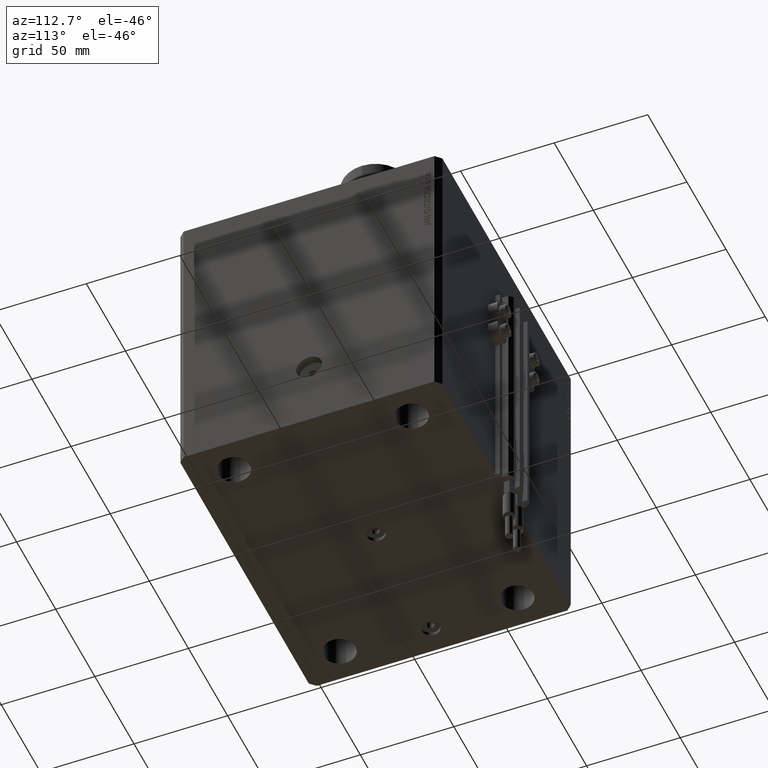
[diagram: clean part render]
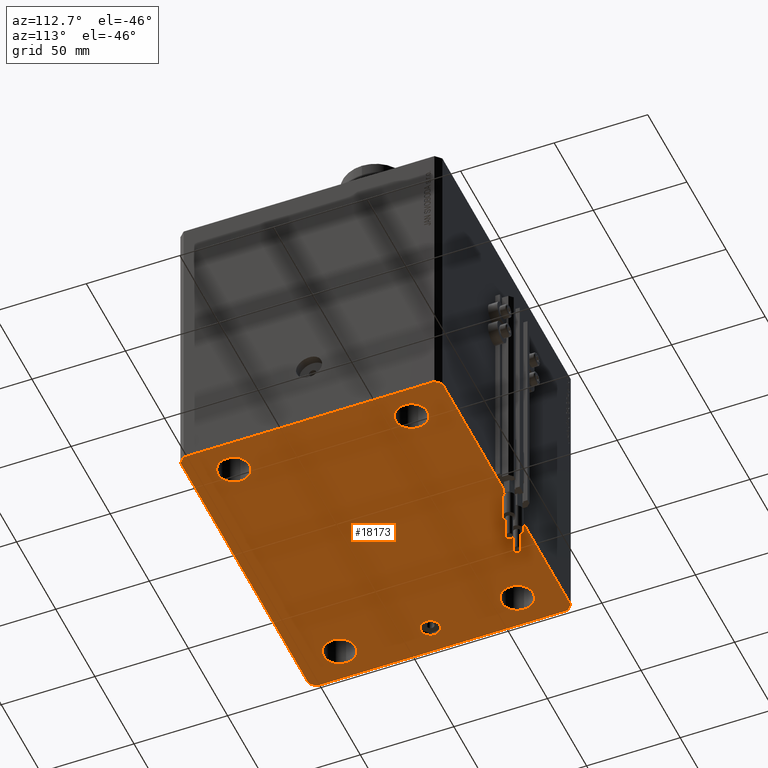
[diagram: same view with one face highlighted and labeled with its STEP entity id]
A machine part, auxiliary view. The second image highlights one B-rep face of the part: STEP entity #18173.
In plain terms, the highlighted planar face has unit normal (0, 0, 1).
Its self-contained STEP definition (entity closure, byte-faithful):
#588 = CIRCLE ( 'NONE', #5418, 8.499999999999992895 ) ;
#993 = CARTESIAN_POINT ( 'NONE',  ( -5.000000000000000000, 0.000000000000000000, -160.0000000000000000 ) ) ;
#1572 = AXIS2_PLACEMENT_3D ( 'NONE', #48797, #17963, #14182 ) ;
#1988 = EDGE_CURVE ( 'NONE', #14984, #17873, #35409, .T. ) ;
#2251 = LINE ( 'NONE', #5772, #44928 ) ;
#2458 = ORIENTED_EDGE ( 'NONE', *, *, #11910, .F. ) ;
#2560 = CARTESIAN_POINT ( 'NONE',  ( 75.99999999999998579, -47.50000000000001421, -160.0000000000000000 ) ) ;
#2867 = DIRECTION ( 'NONE',  ( 1.000000000000000000, 0.000000000000000000, -0.000000000000000000 ) ) ;
#3348 = PLANE ( 'NONE',  #44728 ) ;
#3485 = VERTEX_POINT ( 'NONE', #13277 ) ;
#3542 = EDGE_CURVE ( 'NONE', #26764, #43868, #45171, .T. ) ;
#3877 = VERTEX_POINT ( 'NONE', #6915 ) ;
#4034 = DIRECTION ( 'NONE',  ( -0.000000000000000000, -0.000000000000000000, -1.000000000000000000 ) ) ;
#4366 = EDGE_CURVE ( 'NONE', #17347, #19916, #24219, .T. ) ;
#4389 = DIRECTION ( 'NONE',  ( -0.000000000000000000, -0.000000000000000000, -1.000000000000000000 ) ) ;
#4506 = LINE ( 'NONE', #19881, #38065 ) ;
#4937 = ORIENTED_EDGE ( 'NONE', *, *, #31858, .F. ) ;
#5153 = CIRCLE ( 'NONE', #26934, 8.499999999999992895 ) ;
#5418 = AXIS2_PLACEMENT_3D ( 'NONE', #11102, #8058, #49249 ) ;
#5772 = CARTESIAN_POINT ( 'NONE',  ( 85.00000000000052580, 66.99999999999995737, -160.0000000000000000 ) ) ;
#6022 = CARTESIAN_POINT ( 'NONE',  ( -76.00000000000000000, 47.50000000000000000, -160.0000000000000000 ) ) ;
#6128 = CARTESIAN_POINT ( 'NONE',  ( 85.00000000000001421, -67.00000000000000000, -160.0000000000000000 ) ) ;
#6198 = ORIENTED_EDGE ( 'NONE', *, *, #33427, .F. ) ;
#6263 = CARTESIAN_POINT ( 'NONE',  ( -70.00000000000000000, 0.000000000000000000, -160.0000000000000000 ) ) ;
#6423 = CARTESIAN_POINT ( 'NONE',  ( -82.00000000000000000, -70.00000000000000000, -160.0000000000000000 ) ) ;
#6598 = EDGE_LOOP ( 'NONE', ( #34792, #36515 ) ) ;
#6915 = CARTESIAN_POINT ( 'NONE',  ( 82.00000000000001421, -70.00000000000000000, -160.0000000000000000 ) ) ;
#7323 = CARTESIAN_POINT ( 'NONE',  ( -65.00000000000000000, 6.123233995736770227E-16, -160.0000000000000000 ) ) ;
#7622 = ORIENTED_EDGE ( 'NONE', *, *, #31022, .F. ) ;
#7722 = VECTOR ( 'NONE', #11135, 1000.000000000000114 ) ;
#8058 = DIRECTION ( 'NONE',  ( -0.000000000000000000, -0.000000000000000000, -1.000000000000000000 ) ) ;
#8072 = CARTESIAN_POINT ( 'NONE',  ( -67.50000000000000000, 47.50000000000000000, -160.0000000000000000 ) ) ;
#8173 = DIRECTION ( 'NONE',  ( -0.000000000000000000, -0.000000000000000000, -1.000000000000000000 ) ) ;
#8691 = ORIENTED_EDGE ( 'NONE', *, *, #13782, .F. ) ;
#9515 = VERTEX_POINT ( 'NONE', #2560 ) ;
#10496 = DIRECTION ( 'NONE',  ( 0.000000000000000000, 0.000000000000000000, -1.000000000000000000 ) ) ;
#10547 = CARTESIAN_POINT ( 'NONE',  ( -82.00000000000000000, -70.00000000000000000, -160.0000000000000000 ) ) ;
#10713 = CARTESIAN_POINT ( 'NONE',  ( 0.000000000000000000, 0.000000000000000000, -160.0000000000000000 ) ) ;
#11058 = EDGE_CURVE ( 'NONE', #12943, #26802, #4506, .T. ) ;
#11102 = CARTESIAN_POINT ( 'NONE',  ( -67.49999999999998579, -47.50000000000001421, -160.0000000000000000 ) ) ;
#11135 = DIRECTION ( 'NONE',  ( 0.7071067811865474617, 0.7071067811865474617, 0.000000000000000000 ) ) ;
#11164 = DIRECTION ( 'NONE',  ( 0.000000000000000000, 0.000000000000000000, 1.000000000000000000 ) ) ;
#11910 = EDGE_CURVE ( 'NONE', #30781, #16196, #36426, .T. ) ;
#12461 = EDGE_CURVE ( 'NONE', #16196, #30781, #15471, .T. ) ;
#12841 = DIRECTION ( 'NONE',  ( 1.000000000000000000, 0.000000000000000000, 0.000000000000000000 ) ) ;
#12943 = VERTEX_POINT ( 'NONE', #30053 ) ;
#13277 = CARTESIAN_POINT ( 'NONE',  ( 85.00000000000052580, 66.99999999999995737, -160.0000000000000000 ) ) ;
#13782 = EDGE_CURVE ( 'NONE', #29002, #9515, #18758, .T. ) ;
#13894 = DIRECTION ( 'NONE',  ( -0.000000000000000000, -0.000000000000000000, -1.000000000000000000 ) ) ;
#14004 = VERTEX_POINT ( 'NONE', #6423 ) ;
#14117 = DIRECTION ( 'NONE',  ( 0.000000000000000000, 0.000000000000000000, -1.000000000000000000 ) ) ;
#14182 = DIRECTION ( 'NONE',  ( 1.000000000000000000, 0.000000000000000000, 0.000000000000000000 ) ) ;
#14339 = DIRECTION ( 'NONE',  ( -0.000000000000000000, -0.000000000000000000, -1.000000000000000000 ) ) ;
#14543 = CARTESIAN_POINT ( 'NONE',  ( -75.99999999999998579, -47.50000000000001421, -160.0000000000000000 ) ) ;
#14582 = DIRECTION ( 'NONE',  ( 1.000000000000000000, 0.000000000000000000, 0.000000000000000000 ) ) ;
#14657 = AXIS2_PLACEMENT_3D ( 'NONE', #29556, #14117, #44942 ) ;
#14984 = VERTEX_POINT ( 'NONE', #27416 ) ;
#15471 = CIRCLE ( 'NONE', #45350, 5.000000000000000000 ) ;
#15734 = CARTESIAN_POINT ( 'NONE',  ( -67.50000000000000000, 47.50000000000000000, -160.0000000000000000 ) ) ;
#15918 = VECTOR ( 'NONE', #30518, 1000.000000000000114 ) ;
#15988 = CARTESIAN_POINT ( 'NONE',  ( 67.49999999999998579, -47.50000000000001421, -160.0000000000000000 ) ) ;
#16196 = VERTEX_POINT ( 'NONE', #48057 ) ;
#16374 = DIRECTION ( 'NONE',  ( -0.000000000000000000, -0.000000000000000000, -1.000000000000000000 ) ) ;
#16517 = EDGE_LOOP ( 'NONE', ( #4937, #31611, #6198, #30505, #30898, #21196, #32057, #40631 ) ) ;
#16574 = VECTOR ( 'NONE', #43727, 1000.000000000000000 ) ;
#16687 = LINE ( 'NONE', #47514, #16574 ) ;
#16708 = CIRCLE ( 'NONE', #44964, 5.000000000000004441 ) ;
#16923 = CARTESIAN_POINT ( 'NONE',  ( -82.00000000000000000, 70.00000000000000000, -160.0000000000000000 ) ) ;
#17244 = EDGE_CURVE ( 'NONE', #26608, #36626, #5153, .T. ) ;
#17347 = VERTEX_POINT ( 'NONE', #20255 ) ;
#17416 = AXIS2_PLACEMENT_3D ( 'NONE', #31316, #4034, #31065 ) ;
#17873 = VERTEX_POINT ( 'NONE', #29696 ) ;
#17963 = DIRECTION ( 'NONE',  ( -0.000000000000000000, -0.000000000000000000, -1.000000000000000000 ) ) ;
#18030 = DIRECTION ( 'NONE',  ( 0.000000000000000000, 0.000000000000000000, -1.000000000000000000 ) ) ;
#18173 = ADVANCED_FACE ( 'NONE', ( #44274, #21269, #43524, #18238, #37936, #21761, #41483 ), #3348, .F. ) ;
#18238 = FACE_BOUND ( 'NONE', #38034, .T. ) ;
#18366 = LINE ( 'NONE', #19117, #15918 ) ;
#18584 = AXIS2_PLACEMENT_3D ( 'NONE', #21969, #13894, #40427 ) ;
#18758 = CIRCLE ( 'NONE', #46990, 8.499999999999992895 ) ;
#19117 = CARTESIAN_POINT ( 'NONE',  ( -85.00000000000000000, -67.00000000000000000, -160.0000000000000000 ) ) ;
#19881 = CARTESIAN_POINT ( 'NONE',  ( -85.00000000000001421, 67.00000000000001421, -160.0000000000000000 ) ) ;
#19916 = VERTEX_POINT ( 'NONE', #14543 ) ;
#20193 = EDGE_CURVE ( 'NONE', #3877, #24748, #46725, .T. ) ;
#20255 = CARTESIAN_POINT ( 'NONE',  ( -59.00000000000000000, -47.50000000000001421, -160.0000000000000000 ) ) ;
#20901 = DIRECTION ( 'NONE',  ( -0.7071067811865361374, 0.7071067811865588970, 0.000000000000000000 ) ) ;
#21086 = ORIENTED_EDGE ( 'NONE', *, *, #32140, .F. ) ;
#21121 = CARTESIAN_POINT ( 'NONE',  ( 85.00000000000001421, -67.00000000000000000, -160.0000000000000000 ) ) ;
#21196 = ORIENTED_EDGE ( 'NONE', *, *, #35449, .F. ) ;
#21269 = FACE_BOUND ( 'NONE', #38327, .T. ) ;
#21761 = FACE_BOUND ( 'NONE', #45914, .T. ) ;
#21969 = CARTESIAN_POINT ( 'NONE',  ( -67.49999999999998579, -47.50000000000001421, -160.0000000000000000 ) ) ;
#22299 = EDGE_CURVE ( 'NONE', #17873, #14984, #36005, .T. ) ;
#22656 = EDGE_CURVE ( 'NONE', #14004, #3877, #25711, .T. ) ;
#23542 = AXIS2_PLACEMENT_3D ( 'NONE', #48698, #14339, #14582 ) ;
#23572 = DIRECTION ( 'NONE',  ( 1.000000000000000000, 0.000000000000000000, 0.000000000000000000 ) ) ;
#23793 = VECTOR ( 'NONE', #47755, 1000.000000000000114 ) ;
#23941 = DIRECTION ( 'NONE',  ( 3.728360903591945148E-15, 1.000000000000000000, 0.000000000000000000 ) ) ;
#24219 = CIRCLE ( 'NONE', #18584, 8.499999999999992895 ) ;
#24748 = VERTEX_POINT ( 'NONE', #6128 ) ;
#25381 = CARTESIAN_POINT ( 'NONE',  ( -82.00000000000000000, 70.00000000000000000, -160.0000000000000000 ) ) ;
#25533 = LINE ( 'NONE', #16923, #23793 ) ;
#25711 = LINE ( 'NONE', #10547, #34389 ) ;
#25718 = ORIENTED_EDGE ( 'NONE', *, *, #3542, .F. ) ;
#26389 = DIRECTION ( 'NONE',  ( -1.000000000000000000, 0.000000000000000000, 0.000000000000000000 ) ) ;
#26608 = VERTEX_POINT ( 'NONE', #47248 ) ;
#26764 = VERTEX_POINT ( 'NONE', #7323 ) ;
#26802 = VERTEX_POINT ( 'NONE', #41673 ) ;
#26934 = AXIS2_PLACEMENT_3D ( 'NONE', #15734, #4389, #46803 ) ;
#26986 = DIRECTION ( 'NONE',  ( 1.035655806553317576E-16, -1.000000000000000000, 0.000000000000000000 ) ) ;
#27416 = CARTESIAN_POINT ( 'NONE',  ( 76.00000000000001421, 47.49999999999999289, -160.0000000000000000 ) ) ;
#28227 = AXIS2_PLACEMENT_3D ( 'NONE', #33240, #10496, #37529 ) ;
#28730 = ORIENTED_EDGE ( 'NONE', *, *, #4366, .F. ) ;
#29002 = VERTEX_POINT ( 'NONE', #41547 ) ;
#29249 = EDGE_CURVE ( 'NONE', #19916, #17347, #588, .T. ) ;
#29268 = ORIENTED_EDGE ( 'NONE', *, *, #29249, .F. ) ;
#29518 = CIRCLE ( 'NONE', #48858, 8.499999999999992895 ) ;
#29549 = VECTOR ( 'NONE', #23941, 1000.000000000000000 ) ;
#29556 = CARTESIAN_POINT ( 'NONE',  ( 0.000000000000000000, 0.000000000000000000, -160.0000000000000000 ) ) ;
#29696 = CARTESIAN_POINT ( 'NONE',  ( 59.00000000000000000, 47.49999999999999289, -160.0000000000000000 ) ) ;
#29991 = DIRECTION ( 'NONE',  ( 0.000000000000000000, 0.000000000000000000, -1.000000000000000000 ) ) ;
#30053 = CARTESIAN_POINT ( 'NONE',  ( -85.00000000000001421, 67.00000000000001421, -160.0000000000000000 ) ) ;
#30505 = ORIENTED_EDGE ( 'NONE', *, *, #20193, .F. ) ;
#30518 = DIRECTION ( 'NONE',  ( 0.7071067811865474617, -0.7071067811865474617, 0.000000000000000000 ) ) ;
#30781 = VERTEX_POINT ( 'NONE', #993 ) ;
#30898 = ORIENTED_EDGE ( 'NONE', *, *, #22656, .F. ) ;
#31022 = EDGE_CURVE ( 'NONE', #9515, #29002, #42915, .T. ) ;
#31065 = DIRECTION ( 'NONE',  ( 1.000000000000000000, 0.000000000000000000, 0.000000000000000000 ) ) ;
#31193 = ORIENTED_EDGE ( 'NONE', *, *, #35964, .F. ) ;
#31316 = CARTESIAN_POINT ( 'NONE',  ( 67.50000000000000000, 47.49999999999999289, -160.0000000000000000 ) ) ;
#31611 = ORIENTED_EDGE ( 'NONE', *, *, #35343, .F. ) ;
#31858 = EDGE_CURVE ( 'NONE', #31988, #36197, #16687, .T. ) ;
#31988 = VERTEX_POINT ( 'NONE', #48020 ) ;
#32057 = ORIENTED_EDGE ( 'NONE', *, *, #11058, .F. ) ;
#32140 = EDGE_CURVE ( 'NONE', #36626, #26608, #29518, .T. ) ;
#32891 = CARTESIAN_POINT ( 'NONE',  ( -75.00000000000001421, 0.000000000000000000, -160.0000000000000000 ) ) ;
#33240 = CARTESIAN_POINT ( 'NONE',  ( -70.00000000000000000, 0.000000000000000000, -160.0000000000000000 ) ) ;
#33427 = EDGE_CURVE ( 'NONE', #24748, #3485, #43139, .T. ) ;
#33446 = CARTESIAN_POINT ( 'NONE',  ( 82.00000000000001421, -70.00000000000000000, -160.0000000000000000 ) ) ;
#33779 = DIRECTION ( 'NONE',  ( -1.000000000000000000, 0.000000000000000000, 0.000000000000000000 ) ) ;
#34389 = VECTOR ( 'NONE', #48955, 1000.000000000000000 ) ;
#34754 = ORIENTED_EDGE ( 'NONE', *, *, #17244, .F. ) ;
#34792 = ORIENTED_EDGE ( 'NONE', *, *, #1988, .F. ) ;
#35343 = EDGE_CURVE ( 'NONE', #3485, #31988, #2251, .T. ) ;
#35409 = CIRCLE ( 'NONE', #1572, 8.500000000000007105 ) ;
#35449 = EDGE_CURVE ( 'NONE', #26802, #14004, #18366, .T. ) ;
#35964 = EDGE_CURVE ( 'NONE', #43868, #26764, #16708, .T. ) ;
#36005 = CIRCLE ( 'NONE', #17416, 8.500000000000007105 ) ;
#36197 = VERTEX_POINT ( 'NONE', #25381 ) ;
#36426 = CIRCLE ( 'NONE', #14657, 5.000000000000000000 ) ;
#36515 = ORIENTED_EDGE ( 'NONE', *, *, #22299, .F. ) ;
#36626 = VERTEX_POINT ( 'NONE', #6022 ) ;
#37109 = ORIENTED_EDGE ( 'NONE', *, *, #12461, .F. ) ;
#37529 = DIRECTION ( 'NONE',  ( -1.000000000000000000, 0.000000000000000000, 0.000000000000000000 ) ) ;
#37936 = FACE_BOUND ( 'NONE', #6598, .T. ) ;
#38034 = EDGE_LOOP ( 'NONE', ( #7622, #8691 ) ) ;
#38065 = VECTOR ( 'NONE', #26986, 1000.000000000000000 ) ;
#38327 = EDGE_LOOP ( 'NONE', ( #31193, #25718 ) ) ;
#40427 = DIRECTION ( 'NONE',  ( 1.000000000000000000, 0.000000000000000000, 0.000000000000000000 ) ) ;
#40631 = ORIENTED_EDGE ( 'NONE', *, *, #49899, .F. ) ;
#41082 = EDGE_LOOP ( 'NONE', ( #28730, #29268 ) ) ;
#41338 = EDGE_LOOP ( 'NONE', ( #2458, #37109 ) ) ;
#41483 = FACE_OUTER_BOUND ( 'NONE', #16517, .T. ) ;
#41547 = CARTESIAN_POINT ( 'NONE',  ( 59.00000000000000000, -47.50000000000001421, -160.0000000000000000 ) ) ;
#41673 = CARTESIAN_POINT ( 'NONE',  ( -85.00000000000000000, -67.00000000000000000, -160.0000000000000000 ) ) ;
#42915 = CIRCLE ( 'NONE', #23542, 8.499999999999992895 ) ;
#43139 = LINE ( 'NONE', #21121, #29549 ) ;
#43524 = FACE_BOUND ( 'NONE', #41082, .T. ) ;
#43727 = DIRECTION ( 'NONE',  ( -1.000000000000000000, 0.000000000000000000, 0.000000000000000000 ) ) ;
#43868 = VERTEX_POINT ( 'NONE', #32891 ) ;
#44274 = FACE_BOUND ( 'NONE', #41338, .T. ) ;
#44728 = AXIS2_PLACEMENT_3D ( 'NONE', #49566, #11164, #2867 ) ;
#44928 = VECTOR ( 'NONE', #20901, 1000.000000000000114 ) ;
#44942 = DIRECTION ( 'NONE',  ( -1.000000000000000000, 0.000000000000000000, 0.000000000000000000 ) ) ;
#44964 = AXIS2_PLACEMENT_3D ( 'NONE', #6263, #29991, #33779 ) ;
#45171 = CIRCLE ( 'NONE', #28227, 5.000000000000004441 ) ;
#45350 = AXIS2_PLACEMENT_3D ( 'NONE', #10713, #18030, #26389 ) ;
#45914 = EDGE_LOOP ( 'NONE', ( #34754, #21086 ) ) ;
#46725 = LINE ( 'NONE', #33446, #7722 ) ;
#46803 = DIRECTION ( 'NONE',  ( 1.000000000000000000, 0.000000000000000000, 0.000000000000000000 ) ) ;
#46990 = AXIS2_PLACEMENT_3D ( 'NONE', #15988, #8173, #23572 ) ;
#47248 = CARTESIAN_POINT ( 'NONE',  ( -59.00000000000001421, 47.50000000000000000, -160.0000000000000000 ) ) ;
#47514 = CARTESIAN_POINT ( 'NONE',  ( 82.00000000000056843, 70.00000000000000000, -160.0000000000000000 ) ) ;
#47755 = DIRECTION ( 'NONE',  ( -0.7071067811865507924, -0.7071067811865441310, 0.000000000000000000 ) ) ;
#48020 = CARTESIAN_POINT ( 'NONE',  ( 82.00000000000056843, 70.00000000000000000, -160.0000000000000000 ) ) ;
#48057 = CARTESIAN_POINT ( 'NONE',  ( 5.000000000000000000, 6.123233995736765296E-16, -160.0000000000000000 ) ) ;
#48698 = CARTESIAN_POINT ( 'NONE',  ( 67.49999999999998579, -47.50000000000001421, -160.0000000000000000 ) ) ;
#48797 = CARTESIAN_POINT ( 'NONE',  ( 67.50000000000000000, 47.49999999999999289, -160.0000000000000000 ) ) ;
#48858 = AXIS2_PLACEMENT_3D ( 'NONE', #8072, #16374, #12841 ) ;
#48955 = DIRECTION ( 'NONE',  ( 1.000000000000000000, 0.000000000000000000, 0.000000000000000000 ) ) ;
#49249 = DIRECTION ( 'NONE',  ( 1.000000000000000000, 0.000000000000000000, 0.000000000000000000 ) ) ;
#49566 = CARTESIAN_POINT ( 'NONE',  ( 0.000000000000000000, 0.000000000000000000, -160.0000000000000000 ) ) ;
#49899 = EDGE_CURVE ( 'NONE', #36197, #12943, #25533, .T. ) ;